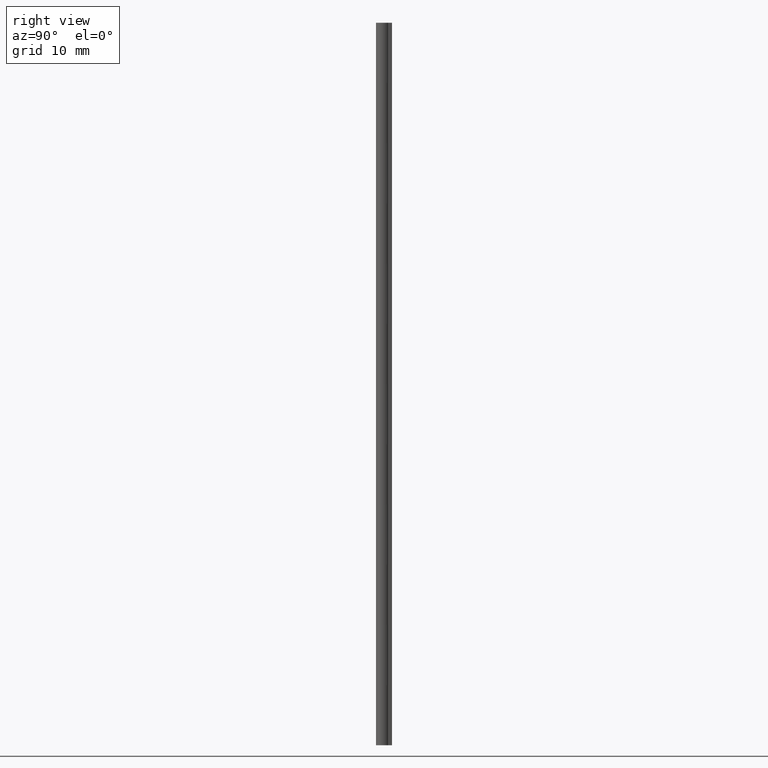
[diagram: clean part render]
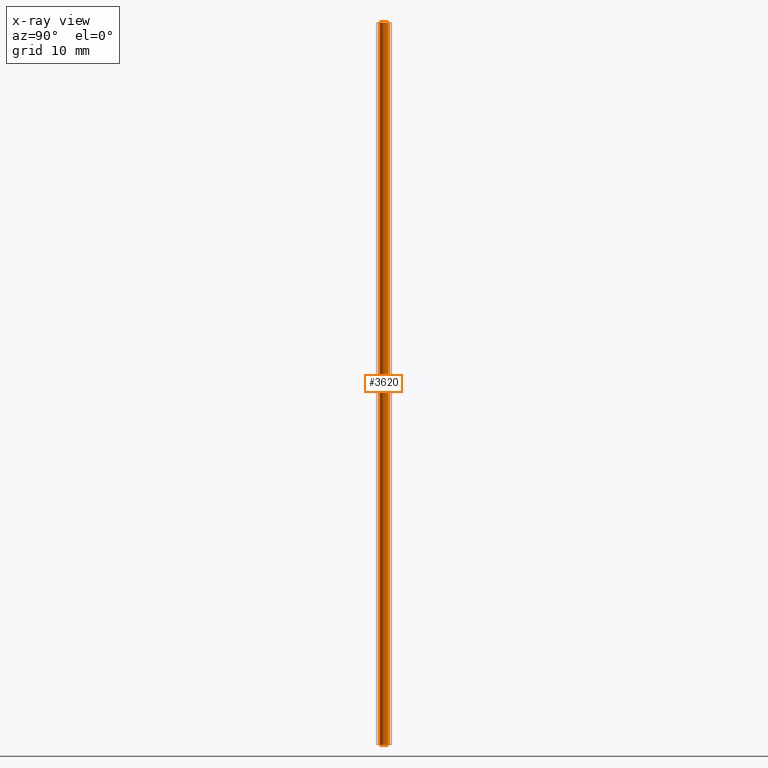
[diagram: x-ray — body ghosted, one internal face saturated and labeled with its STEP entity id]
A machine part, right view, then the same camera in x-ray: the body is ghosted and one INTERNAL B-rep face — a face not visible from any outside direction — is saturated and labeled: STEP entity #3620.
In plain terms, the highlighted face is a freeform B-spline surface patch.
Its self-contained STEP definition (entity closure, byte-faithful):
#3518=CARTESIAN_POINT('',(0.059017117328379,-0.496504763181833,92.250000000000014));
#3519=CARTESIAN_POINT('',(0.044807364318989,-0.498193807724303,92.250000000000014));
#3520=CARTESIAN_POINT('',(0.030524269767428,-0.499067399210933,92.250000000000014));
#3521=CARTESIAN_POINT('',(-0.468543129443505,-0.529591668978362,92.250000000000014));
#3522=CARTESIAN_POINT('',(-0.499067399210933,-0.030524269767428,92.250000000000014));
#3523=CARTESIAN_POINT('',(-0.529591668978362,0.468543129443505,92.250000000000014));
#3524=CARTESIAN_POINT('',(-0.030524269767428,0.499067399210933,92.250000000000014));
#3525=CARTESIAN_POINT('',(0.059017117328379,-0.496504763181833,-2.306250000000006));
#3526=CARTESIAN_POINT('',(0.044807364318989,-0.498193807724303,-2.306250000000006));
#3527=CARTESIAN_POINT('',(0.030524269767428,-0.499067399210933,-2.306250000000006));
#3528=CARTESIAN_POINT('',(-0.468543129443505,-0.529591668978362,-2.306250000000005));
#3529=CARTESIAN_POINT('',(-0.499067399210933,-0.030524269767428,-2.306250000000006));
#3530=CARTESIAN_POINT('',(-0.529591668978362,0.468543129443505,-2.306250000000005));
#3531=CARTESIAN_POINT('',(-0.030524269767428,0.499067399210933,-2.306250000000006));
#3539=(BOUNDED_SURFACE()B_SPLINE_SURFACE(2,1,((#3518,#3525),(#3519,#3526),(#3520,#3527),(#3521,#3528),(#3522,#3529),(#3523,#3530),(#3524,#3531)),.UNSPECIFIED.,.F.,.F.,.U.)B_SPLINE_SURFACE_WITH_KNOTS((3,2,2,3),(2,2),(3.078760800517997,3.141592653589793,4.712388980384690,6.283185307179586),(0.0,94.556250000000034),.UNSPECIFIED.)GEOMETRIC_REPRESENTATION_ITEM()RATIONAL_B_SPLINE_SURFACE(((0.977505800795127,0.977505800795127),(0.988284271247462,0.988284271247462),(1.0,1.0),(0.707106781186548,0.707106781186548),(1.0,1.0),(0.707106781186548,0.707106781186548),(1.0,1.0)))REPRESENTATION_ITEM('')SURFACE());
#3540=CARTESIAN_POINT('',(0.059017118742258,-0.496504763013772,3.634468E-015));
#3541=VERTEX_POINT('',#3540);
#3542=CARTESIAN_POINT('',(-0.500000000000000,0.0,0.0));
#3543=VERTEX_POINT('',#3542);
#3544=CARTESIAN_POINT('',(0.059017118742258,-0.496504763013772,3.634468E-015));
#3545=CARTESIAN_POINT('',(0.029612061254781,-0.500000000000000,0.0));
#3546=CARTESIAN_POINT('',(0.0,-0.500000000000000,0.0));
#3547=CARTESIAN_POINT('',(-0.500000000000000,-0.500000000000000,0.0));
#3548=CARTESIAN_POINT('',(-0.500000000000000,0.0,0.0));
#3556=(BOUNDED_CURVE()B_SPLINE_CURVE(2,(#3544,#3545,#3546,#3547,#3548),.UNSPECIFIED.,.F.,.U.)B_SPLINE_CURVE_WITH_KNOTS((3,2,3),(0.229562472553115,0.250000000000000,0.500000000000000),.UNSPECIFIED.)CURVE()GEOMETRIC_REPRESENTATION_ITEM()RATIONAL_B_SPLINE_CURVE((0.956026752301290,0.976055947205975,1.0,0.707106781186548,1.0))REPRESENTATION_ITEM(''));
#3557=EDGE_CURVE('',#3541,#3543,#3556,.T.);
#3558=ORIENTED_EDGE('',*,*,#3557,.F.);
#3559=CARTESIAN_POINT('',(0.059017118742260,-0.496504763013772,90.0));
#3560=VERTEX_POINT('',#3559);
#3561=CARTESIAN_POINT('',(0.059017118742260,-0.496504763013772,90.0));
#3562=CARTESIAN_POINT('',(0.059017118742258,-0.496504763013772,3.634468E-015));
#3563=QUASI_UNIFORM_CURVE('',1,(#3561,#3562),.UNSPECIFIED.,.F.,.U.);
#3564=EDGE_CURVE('',#3560,#3541,#3563,.T.);
#3565=ORIENTED_EDGE('',*,*,#3564,.F.);
#3566=CARTESIAN_POINT('',(-0.500000000000000,0.0,90.0));
#3567=VERTEX_POINT('',#3566);
#3568=CARTESIAN_POINT('',(0.059017118742260,-0.496504763013772,90.0));
#3569=CARTESIAN_POINT('',(0.029612061254783,-0.500000000000000,90.000000000000014));
#3570=CARTESIAN_POINT('',(0.0,-0.500000000000000,90.0));
#3571=CARTESIAN_POINT('',(-0.500000000000000,-0.500000000000000,89.999999999999986));
#3572=CARTESIAN_POINT('',(-0.500000000000000,0.0,90.0));
#3580=(BOUNDED_CURVE()B_SPLINE_CURVE(2,(#3568,#3569,#3570,#3571,#3572),.UNSPECIFIED.,.F.,.U.)B_SPLINE_CURVE_WITH_KNOTS((3,2,3),(0.229562472553114,0.250000000000000,0.500000000000000),.UNSPECIFIED.)CURVE()GEOMETRIC_REPRESENTATION_ITEM()RATIONAL_B_SPLINE_CURVE((0.956026752301287,0.976055947205973,1.0,0.707106781186548,1.0))REPRESENTATION_ITEM(''));
#3581=EDGE_CURVE('',#3560,#3567,#3580,.T.);
#3582=ORIENTED_EDGE('',*,*,#3581,.T.);
#3583=CARTESIAN_POINT('',(-0.030524270786132,0.499067399148627,90.0));
#3584=VERTEX_POINT('',#3583);
#3585=CARTESIAN_POINT('',(-0.500000000000000,0.0,90.0));
#3586=CARTESIAN_POINT('',(-0.500000000000000,0.470353031529080,89.999999999999986));
#3587=CARTESIAN_POINT('',(-0.030524270786132,0.499067399148627,90.0));
#3595=(BOUNDED_CURVE()B_SPLINE_CURVE(2,(#3585,#3586,#3587),.UNSPECIFIED.,.F.,.U.)B_SPLINE_CURVE_WITH_KNOTS((3,3),(0.500000000000000,0.739332961537559),.UNSPECIFIED.)CURVE()GEOMETRIC_REPRESENTATION_ITEM()RATIONAL_B_SPLINE_CURVE((1.0,0.719603994108432,0.976072040163519))REPRESENTATION_ITEM(''));
#3596=EDGE_CURVE('',#3567,#3584,#3595,.T.);
#3597=ORIENTED_EDGE('',*,*,#3596,.T.);
#3598=CARTESIAN_POINT('',(-0.030524270786131,0.499067399148627,3.552714E-015));
#3599=VERTEX_POINT('',#3598);
#3600=CARTESIAN_POINT('',(-0.030524270786132,0.499067399148627,90.0));
#3601=CARTESIAN_POINT('',(-0.030524270786131,0.499067399148627,3.552714E-015));
#3602=QUASI_UNIFORM_CURVE('',1,(#3600,#3601),.UNSPECIFIED.,.F.,.U.);
#3603=EDGE_CURVE('',#3584,#3599,#3602,.T.);
#3604=ORIENTED_EDGE('',*,*,#3603,.T.);
#3605=CARTESIAN_POINT('',(-0.500000000000000,0.0,0.0));
#3606=CARTESIAN_POINT('',(-0.500000000000000,0.470353031529080,0.0));
#3607=CARTESIAN_POINT('',(-0.030524270786131,0.499067399148627,3.552714E-015));
#3615=(BOUNDED_CURVE()B_SPLINE_CURVE(2,(#3605,#3606,#3607),.UNSPECIFIED.,.F.,.U.)B_SPLINE_CURVE_WITH_KNOTS((3,3),(0.500000000000000,0.739332961537559),.UNSPECIFIED.)CURVE()GEOMETRIC_REPRESENTATION_ITEM()RATIONAL_B_SPLINE_CURVE((1.0,0.719603994108432,0.976072040163519))REPRESENTATION_ITEM(''));
#3616=EDGE_CURVE('',#3543,#3599,#3615,.T.);
#3617=ORIENTED_EDGE('',*,*,#3616,.F.);
#3618=EDGE_LOOP('',(#3558,#3565,#3582,#3597,#3604,#3617));
#3619=FACE_OUTER_BOUND('',#3618,.T.);
#3620=ADVANCED_FACE('',(#3619),#3539,.T.);